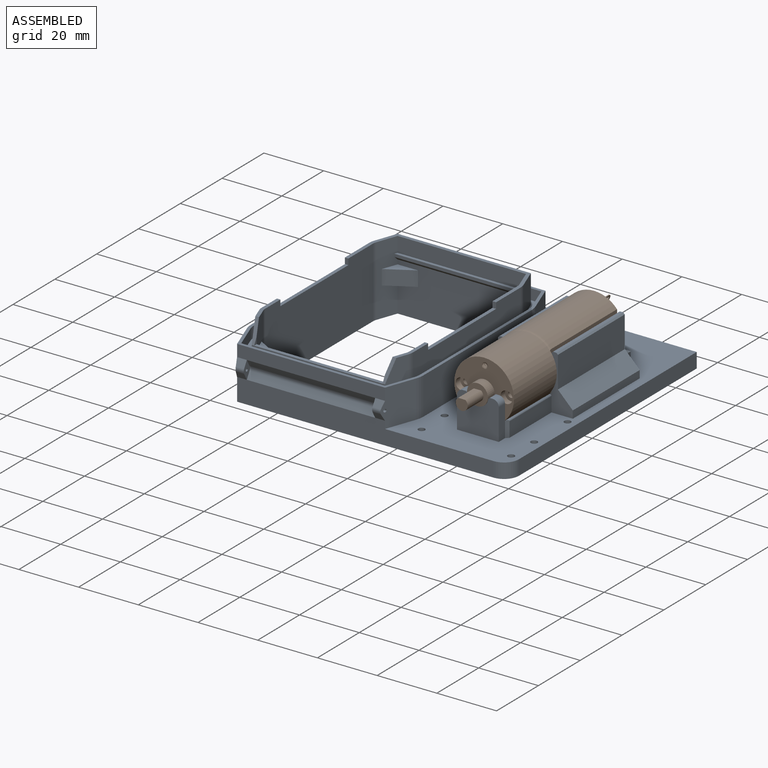
[diagram: assembled view]
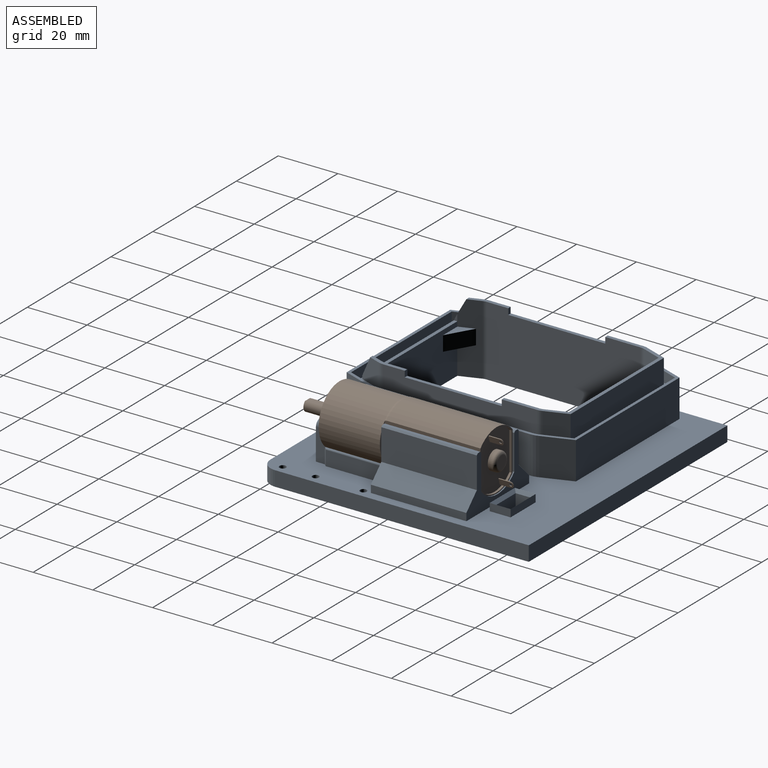
[diagram: assembled view, second angle]
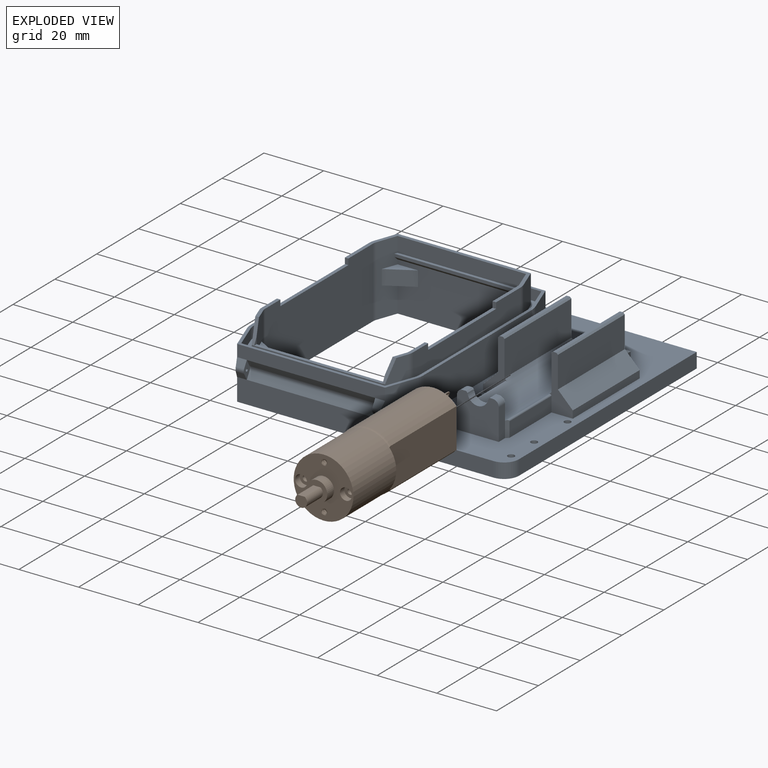
[diagram: exploded view]
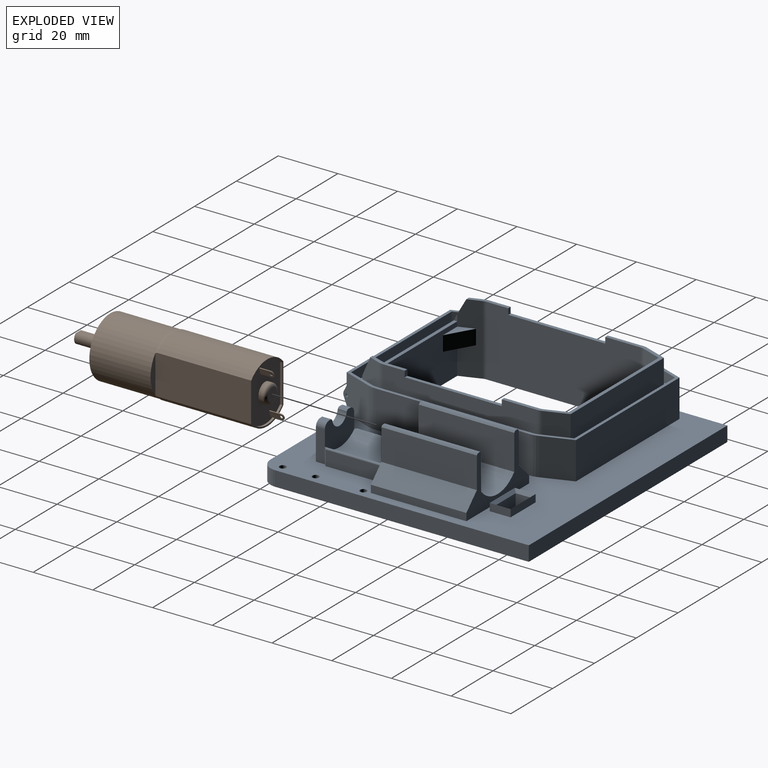
[diagram: exploded view, second angle]
ASSEMBLY  parts=2 mates=2
PART A: 180 faces, bbox 95.1x91.6x23.6 mm
  f0: plane 18.5x7.97mm, normal (0,-1,0), area 64.4mm2, adj f146,f147,f156,f157,f158,f159,f160,f161
  f1: plane 85x5mm, normal (1,0,0), area 425mm2, adj f2,f11,f140,f147
  f2: plane 95x5mm, normal (0,1,0), area 475mm2, adj f1,f9,f11,f147
  f3: cylinder r=1.1mm len=5mm, axis (0,0,1), area 34.6mm2, adj f11,f147
  f4: cylinder r=1.1mm len=5mm, axis (0,0,1), area 34.6mm2, adj f11,f147
  f5: cylinder r=1.1mm len=5mm, axis (0,0,1), area 34.6mm2, adj f11,f147
  f6: cylinder r=1.1mm len=5mm, axis (0,0,1), area 34.6mm2, adj f11,f147
  f7: cylinder r=1.1mm len=5mm, axis (0,0,1), area 34.6mm2, adj f11,f147
  f8: cylinder r=1.1mm len=5mm, axis (0,0,1), area 34.6mm2, adj f11,f147
  f9: plane 77.42x17.5mm, normal (-1,0,0), area 1032.5mm2, adj f2,f11,f71,f72,f80,f147
  f10: plane 85.94x7.5mm, normal (0,-1,0), area 553.6mm2, adj f11,f14,f15,f16,f130,f137,f140,f147
  f11: plane 95x90mm, normal (0,0,-1), area 5173.9mm2, adj f1,f2,f3,f4,f5,f6,f7,f8
  f12: plane 43.01x2.25mm, normal (0,-0.87,-0.5), area 111.7mm2, adj f13,f79,f134,f138
  f13: cylinder r=1.5mm len=43.01mm, axis (1,0,0), area 67.6mm2, adj f12,f14,f134,f138
  f14: plane 43.01x2.25mm, normal (0,-0.87,0.5), area 111.7mm2, adj f10,f13,f134,f138
  f15: plane 12.58x11.39mm, normal (0.94,-0.34,0), area 135.2mm2, adj f10,f71,f78,f79,f130,f131,f132,f133
  f16: plane 17.58x11.39mm, normal (-0.94,-0.34,0), area 187.4mm2, adj f10,f11,f71,f79,f80,f135,f136,f137
  f17: plane 23.5x6.75mm, normal (-0.94,-0.34,0), area 140.6mm2, adj f11,f19,f20,f31,f44,f49,f50,f89
  f18: plane 23.5x6.75mm, normal (0.94,-0.34,0), area 140.6mm2, adj f11,f19,f20,f31,f43,f47,f48,f90
  f19: plane 43.01x16.4mm, normal (0,-1,0), area 637mm2, adj f11,f17,f18,f47,f48,f49,f50,f89
  f20: plane 50.67x20.94mm, normal (0,0,1), area 99.6mm2, adj f17,f18,f31,f32,f33,f34,f35,f38
  f21: plane 12.78x2.95mm, normal (0,0,1), area 15.2mm2, adj f23,f28,f30,f35,f36,f41,f42,f85
  f22: plane 74.8x55.67mm, normal (0,0,1), area 599.2mm2, adj f24,f28,f29,f32,f33,f34,f35,f36
  f23: plane 7x3.58mm, normal (0,-0.89,0.46), area 9.2mm2, adj f21,f24,f28,f30,f57
  f24: plane 44.64x2.6mm, normal (0,-1,0), area 116.1mm2, adj f22,f23,f28,f29,f55,f56
  f25: plane 23.5x6.75mm, normal (-0.94,0.34,0), area 136.1mm2, adj f11,f26,f27,f40,f53,f54,f55,f58
  f26: plane 43.01x16.5mm, normal (0,1,0), area 641.3mm2, adj f11,f25,f30,f51,f52,f53,f54,f56
  f27: plane 12.78x2.95mm, normal (0,0,1), area 15.2mm2, adj f25,f29,f37,f38,f40,f45,f55,f82
  f28: plane 9.6x7.52mm, normal (-0.94,-0.34,0), area 63.4mm2, adj f21,f22,f23,f24,f36
  f29: plane 9.6x7.52mm, normal (0.94,-0.34,0), area 63.4mm2, adj f22,f24,f27,f37,f55
  f30: plane 23.5x6.75mm, normal (0.94,0.34,0), area 136.1mm2, adj f11,f21,f23,f26,f41,f51,f52,f57
  f31: plane 43.01x5.1mm, normal (0,-1,0), area 219.4mm2, adj f17,f18,f20,f127
  f32: plane 44.64x9.6mm, normal (0,1,0), area 428.6mm2, adj f20,f22,f33,f46
  f33: plane 9.6x7.52mm, normal (-0.94,0.34,0), area 76.8mm2, adj f20,f22,f32,f34
  f34: cylinder r=4.58mm len=9.6mm, axis (0,0,-1), area 15.4mm2, adj f20,f22,f33,f35
  f35: plane 51.63x9.6mm, normal (-1,0,0), area 430.7mm2, adj f20,f21,f22,f34,f36,f84,f85,f86
  f36: cylinder r=4.58mm len=9.6mm, axis (0,0,-1), area 15.4mm2, adj f21,f22,f28,f35
  f37: cylinder r=4.58mm len=9.6mm, axis (0,0,-1), area 15.4mm2, adj f22,f27,f29,f38
  f38: plane 51.63x9.6mm, normal (1,0,0), area 430.7mm2, adj f20,f22,f27,f37,f39,f81,f82,f83
  f39: cylinder r=4.58mm len=9.6mm, axis (0,0,-1), area 15.4mm2, adj f20,f22,f38,f46
  f40: cylinder r=3.42mm len=23.5mm, axis (0,0,-1), area 28mm2, adj f11,f25,f27,f45
  f41: cylinder r=3.42mm len=23.5mm, axis (0,0,-1), area 28mm2, adj f11,f21,f30,f42
  f42: plane 51.63x23.5mm, normal (1,0,0), area 1148.3mm2, adj f11,f20,f21,f41,f43,f84,f85,f86
  f43: cylinder r=3.42mm len=23.5mm, axis (0,0,-1), area 28mm2, adj f11,f18,f20,f42
  f44: cylinder r=3.42mm len=23.5mm, axis (0,0,-1), area 28mm2, adj f11,f17,f20,f45
  f45: plane 51.63x23.5mm, normal (-1,0,0), area 1148.3mm2, adj f11,f20,f27,f40,f44,f81,f82,f83
  f46: plane 9.6x7.52mm, normal (0.94,0.34,0), area 76.8mm2, adj f20,f22,f32,f39
  f47: plane 8.66x5mm, normal (0,0,1), area 17.1mm2, adj f18,f19,f48
  f48: plane 8.66x5mm, normal (0.5,-0.87,0), area 50mm2, adj f18,f19,f47,f90
  f49: plane 8.66x5mm, normal (0,0,1), area 17.1mm2, adj f17,f19,f50
  f50: plane 8.66x5mm, normal (-0.5,-0.87,0), area 50mm2, adj f17,f19,f49,f89
  f51: plane 8.66x5mm, normal (0,0,1), area 17.1mm2, adj f26,f30,f52
  f52: plane 8.66x5mm, normal (0.5,0.87,0), area 50mm2, adj f26,f30,f51,f88
  f53: plane 8.66x5mm, normal (0,0,1), area 17.1mm2, adj f25,f26,f54
  f54: plane 8.66x5mm, normal (-0.5,0.87,0), area 50mm2, adj f25,f26,f53,f87
  f55: plane 7x3.58mm, normal (0,-0.89,0.46), area 9.2mm2, adj f24,f25,f27,f29,f58
  f56: plane 43.01x1.17mm, normal (0,0,1), area 50.1mm2, adj f24,f26,f57,f58
  f57: plane 2.28x1.17mm, normal (1,0,0), area 1.3mm2, adj f23,f30,f56
  f58: plane 2.28x1.17mm, normal (-1,0,0), area 1.3mm2, adj f25,f55,f56
  f59: plane 9.16x3.6mm, normal (0.94,0.34,0), area 35.1mm2, adj f22,f60,f70,f71
  f60: cylinder r=7.08mm len=3.6mm, axis (0,0,-1), area 8.9mm2, adj f22,f59,f61,f71
  f61: plane 51.63x3.6mm, normal (1,0,0), area 185.9mm2, adj f22,f60,f62,f71
  f62: cylinder r=7.08mm len=3.6mm, axis (0,0,-1), area 8.9mm2, adj f22,f61,f63,f71
  f63: plane 9.16x3.6mm, normal (0.94,-0.34,0), area 35.1mm2, adj f22,f62,f64,f71
  f64: plane 48.14x3.6mm, normal (0,-1,0), area 173.3mm2, adj f22,f63,f65,f71
  f65: plane 9.16x3.6mm, normal (-0.94,-0.34,0), area 35.1mm2, adj f22,f64,f66,f71
  f66: cylinder r=7.08mm len=3.6mm, axis (0,0,-1), area 8.9mm2, adj f22,f65,f67,f71
  f67: plane 51.63x3.6mm, normal (-1,0,0), area 185.9mm2, adj f22,f66,f68,f71
  f68: cylinder r=7.08mm len=3.6mm, axis (0,0,-1), area 8.9mm2, adj f22,f67,f69,f71
  f69: plane 9.16x3.6mm, normal (-0.94,0.34,0), area 35.1mm2, adj f22,f68,f70,f71
  f70: plane 48.14x3.6mm, normal (0,1,0), area 173.3mm2, adj f22,f59,f69,f71
  f71: plane 76.8x57.67mm, normal (0,0,1), area 251.9mm2, adj f9,f15,f16,f59,f60,f61,f62,f63
  f72: cylinder r=8.08mm len=12.5mm, axis (0,0,-1), area 35.3mm2, adj f9,f71,f73,f147
  f73: plane 12.5x9.82mm, normal (-0.94,0.34,0), area 130.6mm2, adj f71,f72,f74,f147
  f74: plane 49.54x12.5mm, normal (0,1,0), area 619.3mm2, adj f71,f73,f75,f147
  f75: plane 12.5x9.82mm, normal (0.94,0.34,0), area 130.6mm2, adj f71,f74,f76,f147
  f76: cylinder r=8.08mm len=12.5mm, axis (0,0,-1), area 35.3mm2, adj f71,f75,f77,f147
  f77: plane 51.63x12.5mm, normal (1,0,0), area 645.4mm2, adj f71,f76,f78,f147
  f78: cylinder r=8.08mm len=12.5mm, axis (0,0,-1), area 35.3mm2, adj f15,f71,f77,f147
  f79: plane 49.54x4mm, normal (0,-1,0), area 198.2mm2, adj f12,f15,f16,f71,f133,f135
  f80: cylinder r=8.08mm len=17.5mm, axis (0,0,-1), area 49.4mm2, adj f9,f11,f16,f71
  f81: plane 2x1.17mm, normal (0,-1,0), area 2.3mm2, adj f20,f38,f45,f83
  f82: plane 2x1.17mm, normal (0,1,0), area 2.3mm2, adj f27,f38,f45,f83
  f83: plane 32.5x1.17mm, normal (0,0,1), area 37.9mm2, adj f38,f45,f81,f82
  f84: plane 2x1.17mm, normal (0,-1,0), area 2.3mm2, adj f20,f35,f42,f86
  f85: plane 2x1.17mm, normal (0,1,0), area 2.3mm2, adj f21,f35,f42,f86
  f86: plane 32.5x1.17mm, normal (0,0,1), area 37.9mm2, adj f35,f42,f84,f85
  f87: plane 8.66x5mm, normal (0,0,-1), area 17.1mm2, adj f25,f26,f54
  f88: plane 8.66x5mm, normal (0,0,-1), area 17.1mm2, adj f26,f30,f52
  f89: plane 8.66x5mm, normal (0,0,-1), area 17.1mm2, adj f17,f19,f50
  f90: plane 8.66x5mm, normal (0,0,-1), area 17.1mm2, adj f18,f19,f48
  f91: cylinder r=1.1mm len=7.5mm, axis (0,0,-1), area 51.8mm2, adj f11,f92
  f92: plane 2.2x2.2mm, normal (0,0,-1), area 3.8mm2, adj f91
  f93: cylinder r=1.1mm len=7.5mm, axis (0,0,-1), area 51.8mm2, adj f11,f94
  f94: plane 2.2x2.2mm, normal (0,0,-1), area 3.8mm2, adj f93
  f95: cylinder r=1.1mm len=7.5mm, axis (0,0,-1), area 51.8mm2, adj f11,f96
  f96: plane 2.2x2.2mm, normal (0,0,-1), area 3.8mm2, adj f95
  f97: cylinder r=1.1mm len=7.5mm, axis (0,0,-1), area 51.8mm2, adj f11,f98
  f98: plane 2.2x2.2mm, normal (0,0,-1), area 3.8mm2, adj f97
  f99: cylinder r=1.1mm len=7.5mm, axis (0,0,-1), area 51.8mm2, adj f11,f100
  f100: plane 2.2x2.2mm, normal (0,0,-1), area 3.8mm2, adj f99
  f101: cylinder r=1.1mm len=7.5mm, axis (0,0,-1), area 51.8mm2, adj f11,f102
  f102: plane 2.2x2.2mm, normal (0,0,-1), area 3.8mm2, adj f101
  f103: cylinder r=1.1mm len=7.5mm, axis (0,0,-1), area 51.8mm2, adj f11,f104
  f104: plane 2.2x2.2mm, normal (0,0,-1), area 3.8mm2, adj f103
  f105: cylinder r=1.1mm len=7.5mm, axis (0,0,-1), area 51.8mm2, adj f11,f106
  f106: plane 2.2x2.2mm, normal (0,0,-1), area 3.8mm2, adj f105
  f107: cylinder r=1.1mm len=7.5mm, axis (0,0,-1), area 51.8mm2, adj f11,f108
  f108: plane 2.2x2.2mm, normal (0,0,-1), area 3.8mm2, adj f107
  f109: cylinder r=1.1mm len=7.5mm, axis (0,0,-1), area 51.8mm2, adj f11,f110
  f110: plane 2.2x2.2mm, normal (0,0,-1), area 3.8mm2, adj f109
  f111: cylinder r=1.1mm len=7.5mm, axis (0,0,-1), area 51.8mm2, adj f11,f112
  f112: plane 2.2x2.2mm, normal (0,0,-1), area 3.8mm2, adj f111
  f113: cylinder r=1.1mm len=7.5mm, axis (0,0,-1), area 51.8mm2, adj f11,f114
  f114: plane 2.2x2.2mm, normal (0,0,-1), area 3.8mm2, adj f113
  f115: cylinder r=1.1mm len=7.5mm, axis (0,0,-1), area 51.8mm2, adj f11,f116
  f116: plane 2.2x2.2mm, normal (0,0,-1), area 3.8mm2, adj f115
  f117: cylinder r=1.1mm len=7.5mm, axis (0,0,-1), area 51.8mm2, adj f11,f118
  f118: plane 2.2x2.2mm, normal (0,0,-1), area 3.8mm2, adj f117
  f119: plane 6.5x5mm, normal (-1,0,0), area 32.5mm2, adj f11,f120,f122,f124
  f120: plane 10x6.5mm, normal (0,-1,0), area 65mm2, adj f11,f119,f121,f126
  f121: plane 6.5x5mm, normal (1,0,0), area 32.5mm2, adj f11,f120,f122,f125
  f122: plane 10x6.5mm, normal (0,1,0), area 65mm2, adj f11,f119,f121,f123
  f123: plane 12x1mm, normal (0,0.71,0.71), area 15.6mm2, adj f122,f124,f125,f145
  f124: plane 7x1mm, normal (-0.71,0,0.71), area 8.5mm2, adj f119,f123,f126,f144
  f125: plane 7x1mm, normal (0.71,0,0.71), area 8.5mm2, adj f121,f123,f126,f142
  f126: plane 12x1mm, normal (0,-0.71,0.71), area 15.6mm2, adj f120,f124,f125,f143
  f127: plane 43.74x1mm, normal (0,0,1), area 43.4mm2, adj f17,f18,f31,f128
  f128: plane 43.74x1mm, normal (0,-1,0), area 43.7mm2, adj f17,f18,f127,f129
  f129: plane 43.74x1mm, normal (0,-0.71,-0.71), area 61.3mm2, adj f17,f18,f19,f128
  f130: plane 3.27x2.25mm, normal (0,-0.87,-0.5), area 7.9mm2, adj f10,f15,f131,f134
  f131: cylinder r=1.5mm len=2.79mm, axis (-1,0,0), area 4.3mm2, adj f15,f130,f133,f134
  f132: cylinder r=0.5mm len=3.45mm, axis (-1,0,0), area 10.3mm2, adj f15,f134
  f133: plane 3.27x2.25mm, normal (0,-0.87,0.5), area 7.9mm2, adj f15,f79,f131,f134
  f134: plane 6x3mm, normal (-1,0,0), area 9.4mm2, adj f12,f13,f14,f130,f131,f132,f133
  f135: plane 3.27x2.25mm, normal (0,-0.87,0.5), area 7.9mm2, adj f16,f79,f136,f138
  f136: cylinder r=1.5mm len=2.79mm, axis (1,0,0), area 4.3mm2, adj f16,f135,f137,f138
  f137: plane 3.27x2.25mm, normal (0,-0.87,-0.5), area 7.9mm2, adj f10,f16,f136,f138
  f138: plane 6x3mm, normal (1,0,0), area 9.4mm2, adj f12,f13,f14,f135,f136,f137,f139
  f139: cylinder r=0.5mm len=3.45mm, axis (1,0,0), area 10.3mm2, adj f16,f138
  f140: cylinder r=5mm len=5mm, axis (0,0,1), area 39.3mm2, adj f1,f10,f11,f147
  f141: plane 32x2.5mm, normal (-1,0,0), area 80mm2, adj f147,f153,f154,f155
  f142: plane 7x2.5mm, normal (-1,0,0), area 17.5mm2, adj f125,f143,f145,f147
  f143: plane 12x2.5mm, normal (0,1,0), area 30mm2, adj f126,f142,f144,f147
  f144: plane 7x2.5mm, normal (1,0,0), area 17.5mm2, adj f124,f143,f145,f147
  f145: plane 12x2.5mm, normal (0,-1,0), area 30mm2, adj f123,f142,f144,f147
  f146: plane 32x2.5mm, normal (1,0,0), area 80mm2, adj f0,f147,f153,f162
  f147: plane 95x90mm, normal (0,0,1), area 2745.8mm2, adj f0,f1,f2,f3,f4,f5,f6,f7
  f148: plane 32x11.81mm, normal (1,0,0), area 378mm2, adj f149,f153,f155,f156
  f149: plane 32x0.5mm, normal (0.71,0,0.71), area 22.6mm2, adj f148,f150,f153,f155
  f150: plane 32x1.13mm, normal (0,0,1), area 36mm2, adj f149,f151,f153,f155
  f151: plane 32x0.5mm, normal (-0.71,0,0.71), area 22.6mm2, adj f150,f152,f153,f155
  f152: plane 32x10.5mm, normal (-1,0,0), area 336mm2, adj f151,f153,f154,f155
  f153: plane 30x18.5mm, normal (0,1,0), area 185.2mm2, adj f141,f146,f147,f148,f149,f150,f151,f152
  f154: plane 32x5mm, normal (-0.71,0,0.71), area 226.3mm2, adj f141,f152,f153,f155
  f155: plane 18.5x7.97mm, normal (0,-1,0), area 64.4mm2, adj f141,f147,f148,f149,f150,f151,f152,f154
  f156: cylinder r=10.25mm len=53mm, axis (0,-1,0), area 900.2mm2, adj f0,f148,f153,f155,f157,f173,f176,f177
  f157: plane 32x11.81mm, normal (-1,0,0), area 378mm2, adj f0,f153,f156,f158
  f158: plane 32x0.5mm, normal (-0.71,0,0.71), area 22.6mm2, adj f0,f153,f157,f159
  f159: plane 32x1.13mm, normal (0,0,1), area 36mm2, adj f0,f153,f158,f160
  f160: plane 32x0.5mm, normal (0.71,0,0.71), area 22.6mm2, adj f0,f153,f159,f161
  f161: plane 32x10.5mm, normal (1,0,0), area 336mm2, adj f0,f153,f160,f162
  f162: plane 32x5mm, normal (0.71,0,0.71), area 226.3mm2, adj f0,f146,f153,f161
  f163: plane 3x0.5mm, normal (-0.66,0,0.75), area 2mm2, adj f164,f168,f171,f173
  f164: plane 3x1.03mm, normal (0,0,1), area 3.1mm2, adj f163,f165,f171,f173
  f165: cylinder r=2mm len=3mm, axis (0,-1,0), area 9.4mm2, adj f164,f171,f172,f173
  f166: plane 3x1.03mm, normal (0,0,1), area 3.1mm2, adj f167,f169,f171,f173
  f167: plane 3x0.5mm, normal (0.66,0,0.75), area 2mm2, adj f166,f168,f171,f173
  f168: cylinder r=3.5mm len=6.95mm, axis (0,-1,0), area 30.4mm2, adj f163,f167,f171,f173
  f169: cylinder r=2mm len=3mm, axis (0,1,0), area 9.4mm2, adj f166,f170,f171,f173
  f170: plane 10.5x3mm, normal (-1,0,0), area 31.5mm2, adj f147,f169,f171,f173,f176
  f171: plane 14x12.5mm, normal (0,-1,0), area 153.8mm2, adj f147,f163,f164,f165,f166,f167,f168,f169
  f172: plane 10.5x3mm, normal (1,0,0), area 31.5mm2, adj f147,f165,f171,f173,f177
  f173: plane 14x10mm, normal (0,1,0), area 106.7mm2, adj f156,f163,f164,f165,f166,f167,f168,f169
  f174: plane 20.13x4.93mm, normal (-1,0,0), area 99.2mm2, adj f147,f155,f176,f179
  f175: plane 20.13x4.93mm, normal (1,0,0), area 99.2mm2, adj f0,f147,f177,f178
  f176: plane 5.43x0.88mm, normal (-0.71,-0.71,0), area 6.6mm2, adj f147,f156,f170,f174,f179
  f177: plane 5.43x0.88mm, normal (0.71,-0.71,0), area 6.6mm2, adj f147,f156,f172,f175,f178
  f178: cylinder r=0.5mm len=20.97mm, axis (0,-1,0), area 23.8mm2, adj f0,f156,f175,f177
  f179: cylinder r=0.5mm len=20.97mm, axis (0,-1,0), area 23.8mm2, adj f155,f156,f174,f176
PART B: 58 faces, bbox 20.3x67.6x22.2 mm
  f0: plane 19.3x14.4mm, normal (0,1,0), area 216.9mm2, adj f35,f36,f37,f38,f39,f42,f43,f44
  f1: plane 2.28x2.27mm, normal (0,-1,0), area 3.2mm2, adj f31,f32,f33,f34
  f2: plane 20.26x20.26mm, normal (0,-1,0), area 244.1mm2, adj f12,f15,f20,f22,f27,f28,f29,f30
  f3: plane 2.28x2.27mm, normal (0,-1,0), area 3.2mm2, adj f27,f28,f29,f30
  f4: plane 7x7mm, normal (0,-1,0), area 26.6mm2, adj f15,f16,f17
  f5: cylinder r=10.15mm len=31.34mm, axis (0,1,0), area 547.9mm2, adj f8,f10,f11,f14
  f6: plane 12.76x2.3mm, normal (0,1,0), area 20.1mm2, adj f10,f12
  f7: plane 12.76x2.3mm, normal (0,1,0), area 20.1mm2, adj f11,f12
  f8: plane 20.3x15.4mm, normal (0,1,0), area 29.9mm2, adj f5,f9,f10,f11,f35,f36,f37,f38
  f9: cylinder r=10.15mm len=31.34mm, axis (0,1,0), area 547.9mm2, adj f8,f10,f11,f13
  f10: plane 32.19x13.31mm, normal (-1,0,0), area 424.4mm2, adj f5,f6,f8,f9,f13,f14
  f11: plane 32.19x13.31mm, normal (1,0,0), area 424.4mm2, adj f5,f7,f8,f9,f13,f14
  f12: cylinder r=10mm len=20.5mm, axis (0,1,0), area 1288.1mm2, adj f2,f6,f7,f13,f14
  f13: torus R=8.15mm, axis (0,-1,0), area 13.7mm2, adj f9,f10,f11,f12
  f14: torus R=8.15mm, axis (0,-1,0), area 13.7mm2, adj f5,f10,f11,f12
  f15: cylinder r=3.5mm len=7mm, axis (0,1,0), area 70.4mm2, adj f2,f4
  f16: plane 7.5x2.4mm, normal (0,0,1), area 18mm2, adj f4,f17,f18
  f17: cylinder r=2mm len=7.5mm, axis (0,1,0), area 74.9mm2, adj f4,f16,f18
  f18: plane 4x3.6mm, normal (0,-1,0), area 11.9mm2, adj f16,f17
  f19: plane 4x4mm, normal (0,-1,0), area 9.4mm2, adj f20,f24
  f20: cylinder r=2mm len=4mm, axis (0,-1,0), area 27mm2, adj f2,f19
  f21: plane 4x4mm, normal (0,-1,0), area 9.4mm2, adj f22,f26
  f22: cylinder r=2mm len=4mm, axis (0,-1,0), area 27mm2, adj f2,f21
  f23: plane 2x2mm, normal (0,-1,0), area 3.1mm2, adj f24
  f24: cylinder r=1mm len=17.85mm, axis (0,-1,0), area 112.2mm2, adj f19,f23
  f25: plane 2x2mm, normal (0,-1,0), area 3.1mm2, adj f26
  f26: cylinder r=1mm len=17.85mm, axis (0,-1,0), area 112.2mm2, adj f21,f25
  f27: bspline ~20.65x2.98mm, area 80.4mm2, adj f2,f3,f29,f30
  f28: bspline ~20.81x2.98mm, area 81.2mm2, adj f2,f3,f29,f30
  f29: bspline ~20.46x3.09mm, area 23.8mm2, adj f2,f3,f27,f28
  f30: cylinder r=0.75mm len=20mm, axis (0,1,0), area 54.7mm2, adj f2,f3,f27,f28
  f31: bspline ~20.65x2.98mm, area 80.4mm2, adj f1,f2,f33,f34
  f32: bspline ~20.81x2.98mm, area 81.2mm2, adj f1,f2,f33,f34
  f33: bspline ~20.46x3.09mm, area 23.8mm2, adj f1,f2,f31,f32
  f34: cylinder r=0.75mm len=20mm, axis (0,1,0), area 54.7mm2, adj f1,f2,f31,f32
  f35: plane 12.85x0.75mm, normal (1,0,0), area 9.6mm2, adj f0,f8,f36,f38
  f36: cylinder r=9.65mm len=14.4mm, axis (0,1,0), area 12.2mm2, adj f0,f8,f35,f37
  f37: plane 12.85x0.75mm, normal (-1,0,0), area 9.6mm2, adj f0,f8,f36,f38
  f38: cylinder r=9.65mm len=14.4mm, axis (0,1,0), area 12.2mm2, adj f0,f8,f35,f37
  f39: cylinder r=3.15mm len=6.3mm, axis (0,-1,0), area 29.7mm2, adj f0,f41
  f40: plane 4.3x4.3mm, normal (0,1,0), area 14.5mm2, adj f41
  f41: torus R=2.15mm, axis (0,1,0), area 27.5mm2, adj f39,f40
  f42: plane 3.8x0.29mm, normal (0.31,0,0.95), area 1.1mm2, adj f0,f43,f45,f55
  f43: plane 4.8x2.04mm, normal (0.95,0,-0.31), area 9.1mm2, adj f0,f42,f44,f46,f54,f55,f57
  f44: plane 3.8x0.29mm, normal (-0.31,0,-0.95), area 1.1mm2, adj f0,f43,f45,f54
  f45: plane 4.8x2.04mm, normal (-0.95,0,0.31), area 9.1mm2, adj f0,f42,f44,f46,f54,f55,f57
  f46: plane 0.33x0.24mm, normal (0,1,0), area 0mm2, adj f43,f45,f54,f55
  f47: plane 4.8x2.04mm, normal (0.95,0,-0.31), area 9.1mm2, adj f0,f48,f50,f51,f52,f53,f56
  f48: plane 3.8x0.29mm, normal (-0.31,0,-0.95), area 1.1mm2, adj f0,f47,f49,f52
  f49: plane 4.8x2.04mm, normal (-0.95,0,0.31), area 9.1mm2, adj f0,f48,f50,f51,f52,f53,f56
  f50: plane 3.8x0.29mm, normal (0.31,0,0.95), area 1.1mm2, adj f0,f47,f49,f53
  f51: plane 0.33x0.24mm, normal (0,1,0), area 0mm2, adj f47,f49,f52,f53
  f52: cylinder r=1mm len=1.04mm, axis (0.95,0,-0.31), area 0.5mm2, adj f47,f48,f49,f51
  f53: cylinder r=1mm len=1.04mm, axis (-0.95,0,0.31), area 0.5mm2, adj f47,f49,f50,f51
  f54: cylinder r=1mm len=1.04mm, axis (0.95,0,-0.31), area 0.5mm2, adj f43,f44,f45,f46
  f55: cylinder r=1mm len=1.04mm, axis (-0.95,0,0.31), area 0.5mm2, adj f42,f43,f45,f46
  f56: cylinder r=0.5mm len=1.04mm, axis (-0.95,0,0.31), area 0.9mm2, adj f47,f49
  f57: cylinder r=0.5mm len=1.04mm, axis (-0.95,0,0.31), area 0.9mm2, adj f43,f45
PLACE A t=(-47.5,45,0)mm
PLACE B t=(-18,66.6,17.5)mm
MATE revolute A.f168 <-> B.f15  axis (0,1,0) through (-18,14,17.5)mm
MATE parallel B.f11 <-> A.f161  axis (1,0,0) through (-10.3,50.55,17.5)mm
